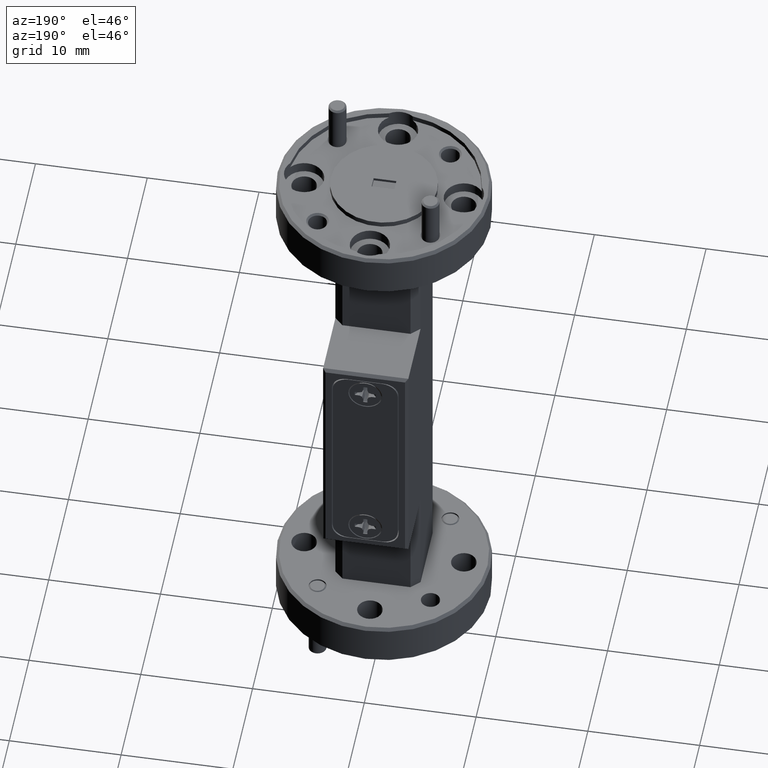
[diagram: clean part render]
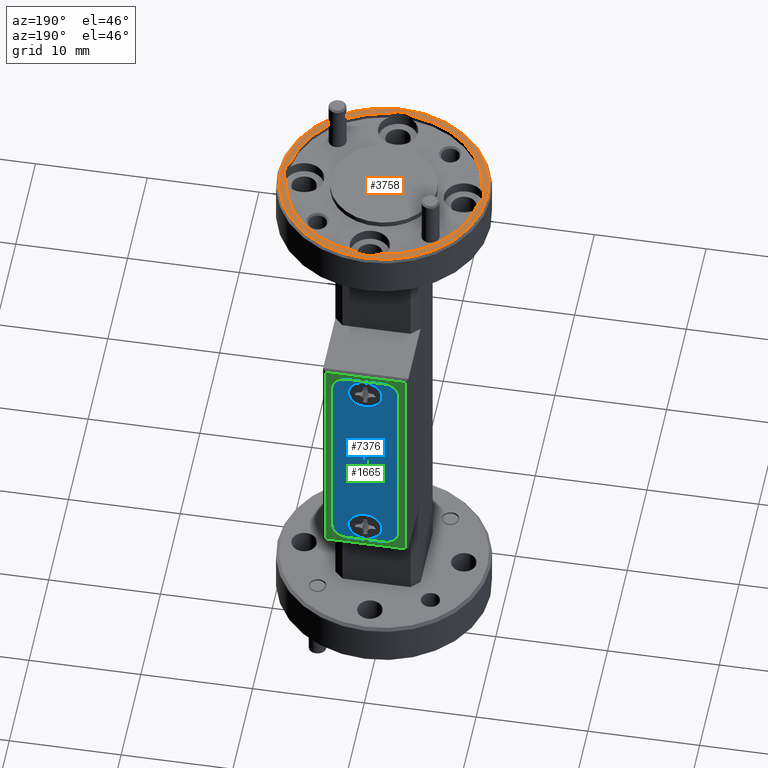
[diagram: same view with three faces highlighted in distinct colors, each labeled with its STEP entity id]
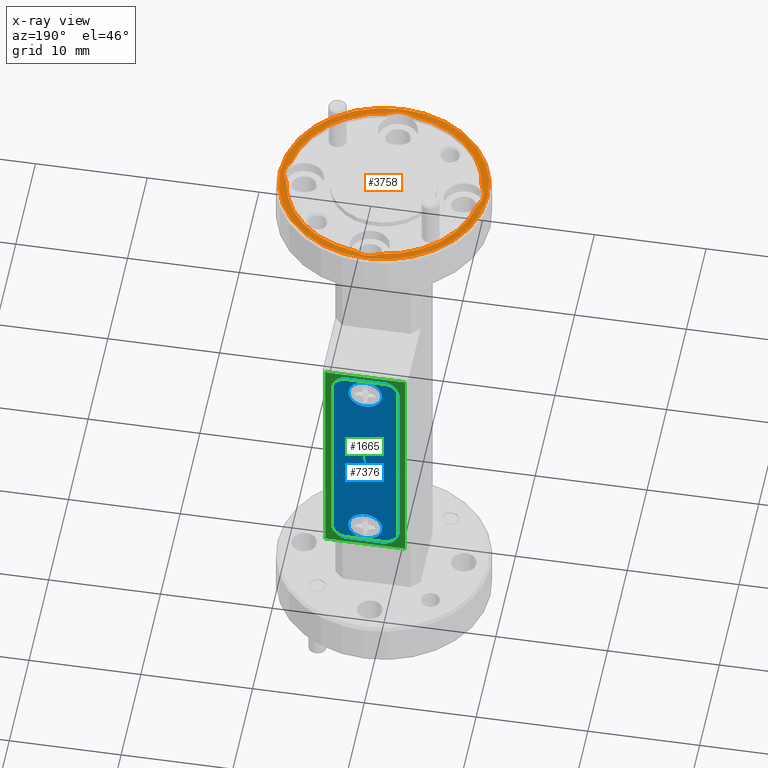
[diagram: x-ray of the same camera — body ghosted, the three highlighted faces saturated]
A machine part, auxiliary view with three faces highlighted in distinct colors.
The next image is the same camera in x-ray (body ghosted, the three faces saturated) — at least one of them is partly hidden behind the body in this view.
Their STEP definitions:

[orange] entity #3758 — the highlighted planar face has unit normal (-0, 0, 1).
#104 = CIRCLE ( 'NONE', #2187, 0.3399999999999999689 ) ;
#310 = DIRECTION ( 'NONE',  ( 0.000000000000000000, 0.000000000000000000, 1.000000000000000000 ) ) ;
#326 = CARTESIAN_POINT ( 'NONE',  ( -0.04176564826505140687, -0.3374250000000001415, 1.000000000000000000 ) ) ;
#334 = DIRECTION ( 'NONE',  ( 1.000000000000000000, 0.000000000000000000, 0.000000000000000000 ) ) ;
#335 = CARTESIAN_POINT ( 'NONE',  ( 0.2812500000000000555, 0.000000000000000000, 1.000000000000000000 ) ) ;
#442 = CIRCLE ( 'NONE', #5620, 0.07000000000000000666 ) ;
#450 = VERTEX_POINT ( 'NONE', #6372 ) ;
#548 = DIRECTION ( 'NONE',  ( 0.000000000000000000, 0.000000000000000000, 1.000000000000000000 ) ) ;
#682 = FACE_OUTER_BOUND ( 'NONE', #6412, .T. ) ;
#698 = AXIS2_PLACEMENT_3D ( 'NONE', #7031, #3462, #5218 ) ;
#817 = EDGE_CURVE ( 'NONE', #4935, #2401, #4106, .T. ) ;
#866 = DIRECTION ( 'NONE',  ( 1.000000000000000000, 0.000000000000000000, 0.000000000000000000 ) ) ;
#904 = DIRECTION ( 'NONE',  ( -0.000000000000000000, 0.000000000000000000, 1.000000000000000000 ) ) ;
#1003 = CARTESIAN_POINT ( 'NONE',  ( 0.000000000000000000, 0.000000000000000000, 1.000000000000000000 ) ) ;
#1047 = CARTESIAN_POINT ( 'NONE',  ( 0.000000000000000000, 0.000000000000000000, 1.000000000000000000 ) ) ;
#1217 = CARTESIAN_POINT ( 'NONE',  ( -0.3374250000000000305, 0.04176564826505155953, 1.000000000000000000 ) ) ;
#1387 = DIRECTION ( 'NONE',  ( 0.000000000000000000, 0.000000000000000000, 1.000000000000000000 ) ) ;
#1416 = AXIS2_PLACEMENT_3D ( 'NONE', #6222, #2701, #2188 ) ;
#1423 = DIRECTION ( 'NONE',  ( -0.000000000000000000, 0.000000000000000000, 1.000000000000000000 ) ) ;
#1547 = CARTESIAN_POINT ( 'NONE',  ( 0.3374250000000000305, 0.04176564826505155953, 1.000000000000000000 ) ) ;
#1576 = CIRCLE ( 'NONE', #3053, 0.07000000000000000666 ) ;
#1600 = DIRECTION ( 'NONE',  ( 1.000000000000000000, 0.000000000000000000, 0.000000000000000000 ) ) ;
#1638 = EDGE_CURVE ( 'NONE', #5135, #6689, #5479, .T. ) ;
#1721 = DIRECTION ( 'NONE',  ( 1.000000000000000000, 0.000000000000000000, 0.000000000000000000 ) ) ;
#1835 = EDGE_CURVE ( 'NONE', #6254, #6214, #4246, .T. ) ;
#2081 = CARTESIAN_POINT ( 'NONE',  ( 0.000000000000000000, -0.2812500000000000555, 1.000000000000000000 ) ) ;
#2147 = ORIENTED_EDGE ( 'NONE', *, *, #4320, .F. ) ;
#2149 = CIRCLE ( 'NONE', #1416, 0.07000000000000000666 ) ;
#2177 = DIRECTION ( 'NONE',  ( -0.000000000000000000, 0.000000000000000000, 1.000000000000000000 ) ) ;
#2187 = AXIS2_PLACEMENT_3D ( 'NONE', #1047, #548, #1721 ) ;
#2188 = DIRECTION ( 'NONE',  ( 1.000000000000000000, 0.000000000000000000, 0.000000000000000000 ) ) ;
#2401 = VERTEX_POINT ( 'NONE', #6282 ) ;
#2404 = CIRCLE ( 'NONE', #698, 0.07000000000000000666 ) ;
#2413 = CARTESIAN_POINT ( 'NONE',  ( 0.000000000000000000, 0.2812500000000000555, 1.000000000000000000 ) ) ;
#2422 = EDGE_CURVE ( 'NONE', #6689, #2983, #442, .T. ) ;
#2590 = ORIENTED_EDGE ( 'NONE', *, *, #7230, .F. ) ;
#2619 = AXIS2_PLACEMENT_3D ( 'NONE', #3405, #5659, #3912 ) ;
#2701 = DIRECTION ( 'NONE',  ( -0.000000000000000000, -0.000000000000000000, 1.000000000000000000 ) ) ;
#2717 = CARTESIAN_POINT ( 'NONE',  ( -0.3374250000000000305, -0.04176564826505155953, 1.000000000000000000 ) ) ;
#2888 = CARTESIAN_POINT ( 'NONE',  ( 0.04176564826505155953, -0.3374250000000000305, 1.000000000000000000 ) ) ;
#2983 = VERTEX_POINT ( 'NONE', #2888 ) ;
#3040 = EDGE_CURVE ( 'NONE', #2401, #5135, #2404, .T. ) ;
#3053 = AXIS2_PLACEMENT_3D ( 'NONE', #335, #5552, #4962 ) ;
#3279 = DIRECTION ( 'NONE',  ( 1.000000000000000000, 0.000000000000000000, 0.000000000000000000 ) ) ;
#3341 = CARTESIAN_POINT ( 'NONE',  ( 0.000000000000000000, 0.000000000000000000, 1.000000000000000000 ) ) ;
#3374 = EDGE_CURVE ( 'NONE', #2983, #450, #3521, .T. ) ;
#3380 = ORIENTED_EDGE ( 'NONE', *, *, #5167, .T. ) ;
#3405 = CARTESIAN_POINT ( 'NONE',  ( -0.2812500000000000555, 0.000000000000000000, 1.000000000000000000 ) ) ;
#3462 = DIRECTION ( 'NONE',  ( -0.000000000000000000, -0.000000000000000000, 1.000000000000000000 ) ) ;
#3521 = CIRCLE ( 'NONE', #5003, 0.3399999999999999689 ) ;
#3599 = CARTESIAN_POINT ( 'NONE',  ( 0.000000000000000000, 0.000000000000000000, 1.000000000000000000 ) ) ;
#3613 = CARTESIAN_POINT ( 'NONE',  ( 0.3512500000000000622, 0.000000000000000000, 1.000000000000000000 ) ) ;
#3674 = ORIENTED_EDGE ( 'NONE', *, *, #1638, .F. ) ;
#3686 = CARTESIAN_POINT ( 'NONE',  ( -0.04176564826505140687, 0.3374250000000001415, 1.000000000000000000 ) ) ;
#3758 = ADVANCED_FACE ( 'NONE', ( #7130, #682 ), #4820, .T. ) ;
#3784 = ORIENTED_EDGE ( 'NONE', *, *, #817, .F. ) ;
#3787 = AXIS2_PLACEMENT_3D ( 'NONE', #3341, #2177, #5639 ) ;
#3801 = CARTESIAN_POINT ( 'NONE',  ( 0.000000000000000000, 0.000000000000000000, 1.000000000000000000 ) ) ;
#3865 = AXIS2_PLACEMENT_3D ( 'NONE', #7314, #904, #334 ) ;
#3912 = DIRECTION ( 'NONE',  ( 1.000000000000000000, 0.000000000000000000, 0.000000000000000000 ) ) ;
#4106 = CIRCLE ( 'NONE', #2619, 0.07000000000000000666 ) ;
#4246 = CIRCLE ( 'NONE', #4749, 0.07000000000000000666 ) ;
#4273 = CARTESIAN_POINT ( 'NONE',  ( 0.3650000000000000466, 4.531193156845207927E-17, 1.000000000000000000 ) ) ;
#4320 = EDGE_CURVE ( 'NONE', #450, #7414, #2149, .T. ) ;
#4414 = CIRCLE ( 'NONE', #3787, 0.3650000000000000466 ) ;
#4416 = DIRECTION ( 'NONE',  ( 1.000000000000000000, 0.000000000000000000, 0.000000000000000000 ) ) ;
#4530 = DIRECTION ( 'NONE',  ( 1.000000000000000000, 0.000000000000000000, 0.000000000000000000 ) ) ;
#4638 = ORIENTED_EDGE ( 'NONE', *, *, #3374, .F. ) ;
#4749 = AXIS2_PLACEMENT_3D ( 'NONE', #2413, #4790, #5404 ) ;
#4790 = DIRECTION ( 'NONE',  ( -0.000000000000000000, -0.000000000000000000, 1.000000000000000000 ) ) ;
#4820 = PLANE ( 'NONE',  #5258 ) ;
#4935 = VERTEX_POINT ( 'NONE', #1217 ) ;
#4962 = DIRECTION ( 'NONE',  ( 1.000000000000000000, 0.000000000000000000, 0.000000000000000000 ) ) ;
#5003 = AXIS2_PLACEMENT_3D ( 'NONE', #3801, #6868, #1600 ) ;
#5033 = CARTESIAN_POINT ( 'NONE',  ( 0.000000000000000000, 0.000000000000000000, 1.000000000000000000 ) ) ;
#5129 = EDGE_LOOP ( 'NONE', ( #7530, #2590, #6969, #2147, #4638, #5419, #3674, #7582, #3784, #5421 ) ) ;
#5135 = VERTEX_POINT ( 'NONE', #2717 ) ;
#5167 = EDGE_CURVE ( 'NONE', #6210, #7139, #5738, .T. ) ;
#5218 = DIRECTION ( 'NONE',  ( 1.000000000000000000, 0.000000000000000000, 0.000000000000000000 ) ) ;
#5258 = AXIS2_PLACEMENT_3D ( 'NONE', #3599, #1423, #4416 ) ;
#5404 = DIRECTION ( 'NONE',  ( 1.000000000000000000, 0.000000000000000000, 0.000000000000000000 ) ) ;
#5419 = ORIENTED_EDGE ( 'NONE', *, *, #2422, .F. ) ;
#5421 = ORIENTED_EDGE ( 'NONE', *, *, #5454, .F. ) ;
#5454 = EDGE_CURVE ( 'NONE', #6214, #4935, #7461, .T. ) ;
#5479 = CIRCLE ( 'NONE', #6225, 0.3399999999999999689 ) ;
#5501 = ORIENTED_EDGE ( 'NONE', *, *, #5950, .T. ) ;
#5552 = DIRECTION ( 'NONE',  ( -0.000000000000000000, -0.000000000000000000, 1.000000000000000000 ) ) ;
#5620 = AXIS2_PLACEMENT_3D ( 'NONE', #2081, #6161, #866 ) ;
#5639 = DIRECTION ( 'NONE',  ( 1.000000000000000000, 0.000000000000000000, 0.000000000000000000 ) ) ;
#5659 = DIRECTION ( 'NONE',  ( -0.000000000000000000, -0.000000000000000000, 1.000000000000000000 ) ) ;
#5738 = CIRCLE ( 'NONE', #3865, 0.3650000000000000466 ) ;
#5950 = EDGE_CURVE ( 'NONE', #7139, #6210, #4414, .T. ) ;
#6161 = DIRECTION ( 'NONE',  ( -0.000000000000000000, -0.000000000000000000, 1.000000000000000000 ) ) ;
#6210 = VERTEX_POINT ( 'NONE', #4273 ) ;
#6214 = VERTEX_POINT ( 'NONE', #3686 ) ;
#6222 = CARTESIAN_POINT ( 'NONE',  ( 0.2812500000000000555, 0.000000000000000000, 1.000000000000000000 ) ) ;
#6225 = AXIS2_PLACEMENT_3D ( 'NONE', #1003, #310, #4530 ) ;
#6226 = AXIS2_PLACEMENT_3D ( 'NONE', #5033, #1387, #3279 ) ;
#6254 = VERTEX_POINT ( 'NONE', #7438 ) ;
#6282 = CARTESIAN_POINT ( 'NONE',  ( -0.3512500000000000622, 8.572527594031471957E-18, 1.000000000000000000 ) ) ;
#6339 = EDGE_CURVE ( 'NONE', #7414, #6676, #1576, .T. ) ;
#6372 = CARTESIAN_POINT ( 'NONE',  ( 0.3374250000000000860, -0.04176564826505142769, 1.000000000000000000 ) ) ;
#6412 = EDGE_LOOP ( 'NONE', ( #5501, #3380 ) ) ;
#6676 = VERTEX_POINT ( 'NONE', #1547 ) ;
#6681 = CARTESIAN_POINT ( 'NONE',  ( -0.3650000000000000466, 0.000000000000000000, 1.000000000000000000 ) ) ;
#6689 = VERTEX_POINT ( 'NONE', #326 ) ;
#6868 = DIRECTION ( 'NONE',  ( 0.000000000000000000, 0.000000000000000000, 1.000000000000000000 ) ) ;
#6969 = ORIENTED_EDGE ( 'NONE', *, *, #6339, .F. ) ;
#7031 = CARTESIAN_POINT ( 'NONE',  ( -0.2812500000000000555, 0.000000000000000000, 1.000000000000000000 ) ) ;
#7130 = FACE_BOUND ( 'NONE', #5129, .T. ) ;
#7139 = VERTEX_POINT ( 'NONE', #6681 ) ;
#7230 = EDGE_CURVE ( 'NONE', #6676, #6254, #104, .T. ) ;
#7314 = CARTESIAN_POINT ( 'NONE',  ( 0.000000000000000000, 0.000000000000000000, 1.000000000000000000 ) ) ;
#7414 = VERTEX_POINT ( 'NONE', #3613 ) ;
#7438 = CARTESIAN_POINT ( 'NONE',  ( 0.04176564826505137912, 0.3374250000000001415, 1.000000000000000000 ) ) ;
#7461 = CIRCLE ( 'NONE', #6226, 0.3399999999999999689 ) ;
#7530 = ORIENTED_EDGE ( 'NONE', *, *, #1835, .F. ) ;
#7582 = ORIENTED_EDGE ( 'NONE', *, *, #3040, .F. ) ;

[blue] entity #7376 — the highlighted planar face has unit normal (-0, -1, -0).
#75 = DIRECTION ( 'NONE',  ( 8.683306935269169147E-17, 1.000000000000000000, 2.547280781376809149E-17 ) ) ;
#108 = LINE ( 'NONE', #2447, #5855 ) ;
#149 = EDGE_CURVE ( 'NONE', #6607, #6258, #1259, .T. ) ;
#194 = DIRECTION ( 'NONE',  ( 1.000000000000000000, 0.000000000000000000, 0.000000000000000000 ) ) ;
#252 = CARTESIAN_POINT ( 'NONE',  ( -0.1145000000000000046, 0.3750000000000002220, -0.3934999999999999609 ) ) ;
#384 = DIRECTION ( 'NONE',  ( 8.683306935269169147E-17, 1.000000000000000000, 2.547280781376809149E-17 ) ) ;
#492 = EDGE_CURVE ( 'NONE', #6258, #3182, #4050, .T. ) ;
#562 = CARTESIAN_POINT ( 'NONE',  ( 0.05949999999999998346, 0.3750000000000002220, 0.3934999999999998499 ) ) ;
#668 = CIRCLE ( 'NONE', #4983, 0.05949999999999999734 ) ;
#699 = FACE_OUTER_BOUND ( 'NONE', #4894, .T. ) ;
#767 = ORIENTED_EDGE ( 'NONE', *, *, #5919, .T. ) ;
#834 = LINE ( 'NONE', #252, #2380 ) ;
#905 = CARTESIAN_POINT ( 'NONE',  ( 0.05949999999999994876, 0.3750000000000002220, -0.3934999999999999609 ) ) ;
#936 = AXIS2_PLACEMENT_3D ( 'NONE', #6882, #3976, #1573 ) ;
#940 = ORIENTED_EDGE ( 'NONE', *, *, #5032, .T. ) ;
#1007 = FACE_BOUND ( 'NONE', #5075, .T. ) ;
#1043 = ORIENTED_EDGE ( 'NONE', *, *, #149, .T. ) ;
#1256 = CARTESIAN_POINT ( 'NONE',  ( -0.05950000000000000427, 0.3750000000000002220, -0.3290000000000000702 ) ) ;
#1259 = CIRCLE ( 'NONE', #7180, 0.05499999999999998640 ) ;
#1326 = CARTESIAN_POINT ( 'NONE',  ( -0.1145000000000000046, 0.3750000000000002220, 0.3384999999999999121 ) ) ;
#1384 = ORIENTED_EDGE ( 'NONE', *, *, #2400, .F. ) ;
#1489 = DIRECTION ( 'NONE',  ( 1.000000000000000000, 0.000000000000000000, 0.000000000000000000 ) ) ;
#1569 = EDGE_CURVE ( 'NONE', #2278, #4323, #7325, .T. ) ;
#1573 = DIRECTION ( 'NONE',  ( 1.000000000000000000, 0.000000000000000000, 0.000000000000000000 ) ) ;
#1588 = CARTESIAN_POINT ( 'NONE',  ( -0.05950000000000000427, 0.3750000000000002220, 0.3289999999999998481 ) ) ;
#1806 = EDGE_CURVE ( 'NONE', #7008, #6168, #668, .T. ) ;
#1947 = ORIENTED_EDGE ( 'NONE', *, *, #5200, .T. ) ;
#1995 = DIRECTION ( 'NONE',  ( -1.000000000000000000, 0.000000000000000000, 0.000000000000000000 ) ) ;
#2016 = CARTESIAN_POINT ( 'NONE',  ( 0.05949999999999999040, 0.3750000000000002220, 0.3289999999999998481 ) ) ;
#2137 = DIRECTION ( 'NONE',  ( -1.000000000000000000, 0.000000000000000000, 0.000000000000000000 ) ) ;
#2153 = ORIENTED_EDGE ( 'NONE', *, *, #6579, .T. ) ;
#2273 = AXIS2_PLACEMENT_3D ( 'NONE', #5040, #5508, #6774 ) ;
#2278 = VERTEX_POINT ( 'NONE', #1326 ) ;
#2306 = AXIS2_PLACEMENT_3D ( 'NONE', #6175, #384, #2137 ) ;
#2344 = DIRECTION ( 'NONE',  ( 1.000000000000000000, -8.683306935269170379E-17, 0.000000000000000000 ) ) ;
#2380 = VECTOR ( 'NONE', #2594, 39.37007874015748143 ) ;
#2400 = EDGE_CURVE ( 'NONE', #6168, #7008, #6719, .T. ) ;
#2447 = CARTESIAN_POINT ( 'NONE',  ( 0.1144999999999999629, 0.3750000000000002220, -0.3934999999999999609 ) ) ;
#2493 = FACE_BOUND ( 'NONE', #3807, .T. ) ;
#2559 = AXIS2_PLACEMENT_3D ( 'NONE', #3091, #6543, #5503 ) ;
#2594 = DIRECTION ( 'NONE',  ( 0.000000000000000000, -2.547280781376810074E-17, 1.000000000000000000 ) ) ;
#2648 = VERTEX_POINT ( 'NONE', #3081 ) ;
#2771 = CARTESIAN_POINT ( 'NONE',  ( -0.1145000000000000046, 0.3750000000000002220, 0.3934999999999998499 ) ) ;
#2808 = LINE ( 'NONE', #2771, #3664 ) ;
#2883 = EDGE_CURVE ( 'NONE', #6885, #3052, #5139, .T. ) ;
#2994 = DIRECTION ( 'NONE',  ( -1.000000000000000000, 0.000000000000000000, 0.000000000000000000 ) ) ;
#3044 = DIRECTION ( 'NONE',  ( -8.683306935269170379E-17, -1.000000000000000000, -2.547280781376809458E-17 ) ) ;
#3052 = VERTEX_POINT ( 'NONE', #4088 ) ;
#3056 = CARTESIAN_POINT ( 'NONE',  ( 0.1144999999999999629, 0.3750000000000002220, -0.3385000000000000231 ) ) ;
#3081 = CARTESIAN_POINT ( 'NONE',  ( -0.1145000000000000046, 0.3750000000000002220, -0.3385000000000000231 ) ) ;
#3091 = CARTESIAN_POINT ( 'NONE',  ( -0.05950000000000001815, 0.3750000000000002220, -0.3385000000000000231 ) ) ;
#3182 = VERTEX_POINT ( 'NONE', #5477 ) ;
#3226 = DIRECTION ( 'NONE',  ( 8.683306935269169147E-17, 1.000000000000000000, 2.547280781376809149E-17 ) ) ;
#3230 = VECTOR ( 'NONE', #5290, 39.37007874015748143 ) ;
#3399 = ORIENTED_EDGE ( 'NONE', *, *, #5931, .F. ) ;
#3642 = DIRECTION ( 'NONE',  ( 0.000000000000000000, 2.547280781376810074E-17, -1.000000000000000000 ) ) ;
#3664 = VECTOR ( 'NONE', #5136, 39.37007874015748143 ) ;
#3696 = CARTESIAN_POINT ( 'NONE',  ( 0.05949999999999994876, 0.3750000000000002220, -0.3385000000000000231 ) ) ;
#3730 = DIRECTION ( 'NONE',  ( 8.683306935269169147E-17, 1.000000000000000000, 2.547280781376809149E-17 ) ) ;
#3807 = EDGE_LOOP ( 'NONE', ( #1384, #5677 ) ) ;
#3859 = DIRECTION ( 'NONE',  ( 8.683306935269169147E-17, 1.000000000000000000, 2.547280781376809149E-17 ) ) ;
#3885 = ORIENTED_EDGE ( 'NONE', *, *, #5573, .F. ) ;
#3941 = CARTESIAN_POINT ( 'NONE',  ( -0.05950000000000002509, 0.3750000000000002220, 0.3934999999999998499 ) ) ;
#3976 = DIRECTION ( 'NONE',  ( 8.683306935269169147E-17, 1.000000000000000000, 2.547280781376809149E-17 ) ) ;
#4050 = LINE ( 'NONE', #7028, #3230 ) ;
#4088 = CARTESIAN_POINT ( 'NONE',  ( 0.1144999999999999629, 0.3750000000000001665, 0.3384999999999997455 ) ) ;
#4183 = CIRCLE ( 'NONE', #2559, 0.05499999999999999334 ) ;
#4199 = CARTESIAN_POINT ( 'NONE',  ( 2.604992080580751006E-18, 0.3750000000000002220, -0.3290000000000000702 ) ) ;
#4323 = VERTEX_POINT ( 'NONE', #3941 ) ;
#4633 = CIRCLE ( 'NONE', #6974, 0.05949999999999999734 ) ;
#4840 = CARTESIAN_POINT ( 'NONE',  ( 0.05949999999999999040, 0.3750000000000002220, -0.3290000000000000702 ) ) ;
#4894 = EDGE_LOOP ( 'NONE', ( #767, #7512, #940, #1043, #5542, #2153, #1947, #6703 ) ) ;
#4983 = AXIS2_PLACEMENT_3D ( 'NONE', #4199, #75, #2994 ) ;
#5018 = CARTESIAN_POINT ( 'NONE',  ( -0.05950000000000002509, 0.3750000000000002220, 0.3384999999999999121 ) ) ;
#5032 = EDGE_CURVE ( 'NONE', #3052, #6607, #108, .T. ) ;
#5040 = CARTESIAN_POINT ( 'NONE',  ( 2.604992080580751006E-18, 0.3750000000000002220, -0.3290000000000000702 ) ) ;
#5075 = EDGE_LOOP ( 'NONE', ( #3885, #3399 ) ) ;
#5136 = DIRECTION ( 'NONE',  ( 1.000000000000000000, -8.683306935269171612E-17, 0.000000000000000000 ) ) ;
#5139 = CIRCLE ( 'NONE', #936, 0.05499999999999998640 ) ;
#5200 = EDGE_CURVE ( 'NONE', #2648, #2278, #834, .T. ) ;
#5290 = DIRECTION ( 'NONE',  ( -1.000000000000000000, 8.683306935269171612E-17, 0.000000000000000000 ) ) ;
#5331 = CARTESIAN_POINT ( 'NONE',  ( 2.604992080580751006E-18, 0.3750000000000002220, -1.358282154488001328E-16 ) ) ;
#5477 = CARTESIAN_POINT ( 'NONE',  ( -0.05950000000000001815, 0.3750000000000002220, -0.3934999999999999609 ) ) ;
#5503 = DIRECTION ( 'NONE',  ( 1.000000000000000000, 0.000000000000000000, 0.000000000000000000 ) ) ;
#5508 = DIRECTION ( 'NONE',  ( 8.683306935269169147E-17, 1.000000000000000000, 2.547280781376809149E-17 ) ) ;
#5534 = AXIS2_PLACEMENT_3D ( 'NONE', #5331, #3044, #2344 ) ;
#5542 = ORIENTED_EDGE ( 'NONE', *, *, #492, .T. ) ;
#5573 = EDGE_CURVE ( 'NONE', #6844, #5811, #4633, .T. ) ;
#5677 = ORIENTED_EDGE ( 'NONE', *, *, #1806, .F. ) ;
#5811 = VERTEX_POINT ( 'NONE', #2016 ) ;
#5855 = VECTOR ( 'NONE', #3642, 39.37007874015748143 ) ;
#5883 = PLANE ( 'NONE',  #5534 ) ;
#5919 = EDGE_CURVE ( 'NONE', #4323, #6885, #2808, .T. ) ;
#5931 = EDGE_CURVE ( 'NONE', #5811, #6844, #6887, .T. ) ;
#6168 = VERTEX_POINT ( 'NONE', #1256 ) ;
#6175 = CARTESIAN_POINT ( 'NONE',  ( 2.604992080580751006E-18, 0.3750000000000002220, 0.3289999999999998481 ) ) ;
#6258 = VERTEX_POINT ( 'NONE', #905 ) ;
#6543 = DIRECTION ( 'NONE',  ( 8.683306935269169147E-17, 1.000000000000000000, 2.547280781376809149E-17 ) ) ;
#6579 = EDGE_CURVE ( 'NONE', #3182, #2648, #4183, .T. ) ;
#6607 = VERTEX_POINT ( 'NONE', #3056 ) ;
#6703 = ORIENTED_EDGE ( 'NONE', *, *, #1569, .T. ) ;
#6706 = AXIS2_PLACEMENT_3D ( 'NONE', #5018, #3226, #1489 ) ;
#6719 = CIRCLE ( 'NONE', #2273, 0.05949999999999999734 ) ;
#6774 = DIRECTION ( 'NONE',  ( -1.000000000000000000, 0.000000000000000000, 0.000000000000000000 ) ) ;
#6844 = VERTEX_POINT ( 'NONE', #1588 ) ;
#6882 = CARTESIAN_POINT ( 'NONE',  ( 0.05949999999999998346, 0.3750000000000002220, 0.3384999999999997455 ) ) ;
#6885 = VERTEX_POINT ( 'NONE', #562 ) ;
#6887 = CIRCLE ( 'NONE', #2306, 0.05949999999999999734 ) ;
#6974 = AXIS2_PLACEMENT_3D ( 'NONE', #7302, #3859, #1995 ) ;
#7008 = VERTEX_POINT ( 'NONE', #4840 ) ;
#7028 = CARTESIAN_POINT ( 'NONE',  ( -0.1145000000000000046, 0.3750000000000002220, -0.3934999999999999609 ) ) ;
#7180 = AXIS2_PLACEMENT_3D ( 'NONE', #3696, #3730, #194 ) ;
#7302 = CARTESIAN_POINT ( 'NONE',  ( 2.604992080580751006E-18, 0.3750000000000002220, 0.3289999999999998481 ) ) ;
#7325 = CIRCLE ( 'NONE', #6706, 0.05499999999999999334 ) ;
#7376 = ADVANCED_FACE ( 'NONE', ( #1007, #699, #2493 ), #5883, .F. ) ;
#7512 = ORIENTED_EDGE ( 'NONE', *, *, #2883, .T. ) ;

[green] entity #1665 — the highlighted planar face has unit normal (0, -1, 0).
#163 = DIRECTION ( 'NONE',  ( 0.000000000000000000, 0.000000000000000000, -1.000000000000000000 ) ) ;
#263 = CARTESIAN_POINT ( 'NONE',  ( -0.06750000000000008771, 0.3750000000000000555, -0.3950000000000000733 ) ) ;
#283 = LINE ( 'NONE', #6521, #4229 ) ;
#374 = LINE ( 'NONE', #410, #1037 ) ;
#410 = CARTESIAN_POINT ( 'NONE',  ( -0.1499999999999998834, 0.3750000000000000555, -0.4149999999999998135 ) ) ;
#595 = EDGE_CURVE ( 'NONE', #6013, #2043, #283, .T. ) ;
#638 = CARTESIAN_POINT ( 'NONE',  ( 0.06749999999999997669, 0.3750000000000000555, 0.3449999999999998068 ) ) ;
#776 = EDGE_CURVE ( 'NONE', #5361, #3693, #3994, .T. ) ;
#826 = DIRECTION ( 'NONE',  ( 0.000000000000000000, 0.000000000000000000, -1.000000000000000000 ) ) ;
#864 = DIRECTION ( 'NONE',  ( -1.484699996556665039E-16, -0.000000000000000000, -1.000000000000000000 ) ) ;
#924 = EDGE_CURVE ( 'NONE', #3693, #7563, #4362, .T. ) ;
#1010 = CARTESIAN_POINT ( 'NONE',  ( -0.06750000000000008771, 0.3750000000000000555, -0.3950000000000000733 ) ) ;
#1037 = VECTOR ( 'NONE', #2122, 39.37007874015748143 ) ;
#1222 = AXIS2_PLACEMENT_3D ( 'NONE', #1275, #3553, #163 ) ;
#1275 = CARTESIAN_POINT ( 'NONE',  ( 0.06749999999999987954, 0.3750000000000000555, -0.3450000000000000844 ) ) ;
#1354 = CARTESIAN_POINT ( 'NONE',  ( -0.1175000000000001460, 0.3750000000000000555, -0.3449999999999999178 ) ) ;
#1357 = EDGE_LOOP ( 'NONE', ( #5791, #6582, #6198, #2773 ) ) ;
#1508 = CARTESIAN_POINT ( 'NONE',  ( -0.1175000000000001182, 0.3750000000000000555, -0.3450000000000000844 ) ) ;
#1586 = CIRCLE ( 'NONE', #1222, 0.05000000000000000971 ) ;
#1610 = VERTEX_POINT ( 'NONE', #4975 ) ;
#1611 = DIRECTION ( 'NONE',  ( 1.000000000000000000, 0.000000000000000000, 5.058977766044932872E-16 ) ) ;
#1665 = ADVANCED_FACE ( 'NONE', ( #3937, #5721 ), #7493, .F. ) ;
#1722 = VECTOR ( 'NONE', #3694, 39.37007874015748143 ) ;
#1732 = DIRECTION ( 'NONE',  ( 0.000000000000000000, 1.000000000000000000, 0.000000000000000000 ) ) ;
#1749 = VERTEX_POINT ( 'NONE', #2258 ) ;
#1772 = CARTESIAN_POINT ( 'NONE',  ( -0.06750000000000000444, 0.3750000000000000555, 0.3449999999999998068 ) ) ;
#1800 = DIRECTION ( 'NONE',  ( 0.000000000000000000, 1.000000000000000000, 0.000000000000000000 ) ) ;
#1991 = VECTOR ( 'NONE', #6354, 39.37007874015748143 ) ;
#2043 = VERTEX_POINT ( 'NONE', #4965 ) ;
#2122 = DIRECTION ( 'NONE',  ( -1.000000000000000000, 0.000000000000000000, 0.000000000000000000 ) ) ;
#2183 = CARTESIAN_POINT ( 'NONE',  ( 0.1499999999999998834, 0.3750000000000000555, 0.4249999999999999889 ) ) ;
#2258 = CARTESIAN_POINT ( 'NONE',  ( -0.1399999999999999301, 0.3750000000000000555, 0.4149999999999998135 ) ) ;
#2675 = CARTESIAN_POINT ( 'NONE',  ( -0.1175000000000000072, 0.3750000000000000555, 0.3449999999999998068 ) ) ;
#2748 = LINE ( 'NONE', #6237, #6768 ) ;
#2773 = ORIENTED_EDGE ( 'NONE', *, *, #7606, .T. ) ;
#2779 = DIRECTION ( 'NONE',  ( 0.000000000000000000, 0.000000000000000000, 1.000000000000000000 ) ) ;
#2786 = ORIENTED_EDGE ( 'NONE', *, *, #4978, .F. ) ;
#2790 = ORIENTED_EDGE ( 'NONE', *, *, #776, .F. ) ;
#2814 = DIRECTION ( 'NONE',  ( 0.000000000000000000, -0.000000000000000000, -1.000000000000000000 ) ) ;
#2855 = LINE ( 'NONE', #6884, #5037 ) ;
#2867 = CARTESIAN_POINT ( 'NONE',  ( 0.1399999999999997080, 0.3750000000000000555, -0.4149999999999998135 ) ) ;
#2880 = EDGE_CURVE ( 'NONE', #7563, #4275, #6920, .T. ) ;
#3275 = ORIENTED_EDGE ( 'NONE', *, *, #4528, .F. ) ;
#3553 = DIRECTION ( 'NONE',  ( 0.000000000000000000, 1.000000000000000000, -0.000000000000000000 ) ) ;
#3575 = DIRECTION ( 'NONE',  ( 0.000000000000000000, 0.000000000000000000, 1.000000000000000000 ) ) ;
#3586 = DIRECTION ( 'NONE',  ( 0.000000000000000000, 0.000000000000000000, 1.000000000000000000 ) ) ;
#3693 = VERTEX_POINT ( 'NONE', #2675 ) ;
#3694 = DIRECTION ( 'NONE',  ( -1.000000000000000000, -0.000000000000000000, -0.000000000000000000 ) ) ;
#3767 = ORIENTED_EDGE ( 'NONE', *, *, #6975, .F. ) ;
#3927 = VERTEX_POINT ( 'NONE', #1010 ) ;
#3937 = FACE_OUTER_BOUND ( 'NONE', #1357, .T. ) ;
#3994 = LINE ( 'NONE', #1508, #1991 ) ;
#4229 = VECTOR ( 'NONE', #864, 39.37007874015748143 ) ;
#4275 = VERTEX_POINT ( 'NONE', #5066 ) ;
#4325 = CARTESIAN_POINT ( 'NONE',  ( -0.06750000000000000444, 0.3750000000000000555, 0.3949999999999997957 ) ) ;
#4360 = LINE ( 'NONE', #263, #1722 ) ;
#4362 = CIRCLE ( 'NONE', #6695, 0.05000000000000000971 ) ;
#4528 = EDGE_CURVE ( 'NONE', #3927, #5361, #5332, .T. ) ;
#4575 = DIRECTION ( 'NONE',  ( 0.000000000000000000, -1.000000000000000000, 0.000000000000000000 ) ) ;
#4614 = CARTESIAN_POINT ( 'NONE',  ( 0.06749999999999987954, 0.3750000000000000555, -0.3950000000000000733 ) ) ;
#4624 = CIRCLE ( 'NONE', #7574, 0.05000000000000007910 ) ;
#4758 = CARTESIAN_POINT ( 'NONE',  ( -0.06750000000000008771, 0.3750000000000000555, -0.3450000000000000844 ) ) ;
#4889 = DIRECTION ( 'NONE',  ( 0.000000000000000000, 0.000000000000000000, 1.000000000000000000 ) ) ;
#4965 = CARTESIAN_POINT ( 'NONE',  ( 0.1174999999999998684, 0.3750000000000000555, -0.3450000000000000844 ) ) ;
#4975 = CARTESIAN_POINT ( 'NONE',  ( -0.1399999999999999301, 0.3750000000000000555, -0.4149999999999998135 ) ) ;
#4978 = EDGE_CURVE ( 'NONE', #4275, #6013, #4624, .T. ) ;
#5037 = VECTOR ( 'NONE', #2779, 39.37007874015748143 ) ;
#5066 = CARTESIAN_POINT ( 'NONE',  ( 0.06749999999999997669, 0.3750000000000000555, 0.3949999999999999067 ) ) ;
#5124 = EDGE_CURVE ( 'NONE', #5230, #1610, #374, .T. ) ;
#5168 = LINE ( 'NONE', #5818, #7249 ) ;
#5230 = VERTEX_POINT ( 'NONE', #2867 ) ;
#5332 = CIRCLE ( 'NONE', #7173, 0.05000000000000000971 ) ;
#5361 = VERTEX_POINT ( 'NONE', #1354 ) ;
#5470 = DIRECTION ( 'NONE',  ( 0.000000000000000000, 1.000000000000000000, 0.000000000000000000 ) ) ;
#5684 = CARTESIAN_POINT ( 'NONE',  ( -0.06750000000000000444, 0.3750000000000000555, 0.3949999999999997957 ) ) ;
#5721 = FACE_BOUND ( 'NONE', #6135, .T. ) ;
#5728 = EDGE_CURVE ( 'NONE', #7351, #3927, #4360, .T. ) ;
#5791 = ORIENTED_EDGE ( 'NONE', *, *, #6743, .T. ) ;
#5818 = CARTESIAN_POINT ( 'NONE',  ( 0.1499999999999998834, 0.3750000000000000555, 0.4149999999999998135 ) ) ;
#6013 = VERTEX_POINT ( 'NONE', #7097 ) ;
#6135 = EDGE_LOOP ( 'NONE', ( #2790, #3275, #6749, #3767, #6508, #2786, #6827, #6256 ) ) ;
#6198 = ORIENTED_EDGE ( 'NONE', *, *, #7285, .T. ) ;
#6237 = CARTESIAN_POINT ( 'NONE',  ( 0.1399999999999997080, 0.3750000000000000555, 0.4249999999999999889 ) ) ;
#6256 = ORIENTED_EDGE ( 'NONE', *, *, #924, .F. ) ;
#6354 = DIRECTION ( 'NONE',  ( 1.484699996556665039E-16, 0.000000000000000000, 1.000000000000000000 ) ) ;
#6460 = CARTESIAN_POINT ( 'NONE',  ( 0.1399999999999997080, 0.3750000000000000555, 0.4149999999999998135 ) ) ;
#6508 = ORIENTED_EDGE ( 'NONE', *, *, #595, .F. ) ;
#6521 = CARTESIAN_POINT ( 'NONE',  ( 0.1174999999999998684, 0.3750000000000000555, -0.3450000000000000844 ) ) ;
#6582 = ORIENTED_EDGE ( 'NONE', *, *, #5124, .T. ) ;
#6695 = AXIS2_PLACEMENT_3D ( 'NONE', #1772, #1732, #3586 ) ;
#6726 = VECTOR ( 'NONE', #1611, 39.37007874015748143 ) ;
#6743 = EDGE_CURVE ( 'NONE', #6823, #5230, #2748, .T. ) ;
#6749 = ORIENTED_EDGE ( 'NONE', *, *, #5728, .F. ) ;
#6768 = VECTOR ( 'NONE', #826, 39.37007874015748143 ) ;
#6823 = VERTEX_POINT ( 'NONE', #6460 ) ;
#6827 = ORIENTED_EDGE ( 'NONE', *, *, #2880, .F. ) ;
#6843 = AXIS2_PLACEMENT_3D ( 'NONE', #2183, #4575, #2814 ) ;
#6884 = CARTESIAN_POINT ( 'NONE',  ( -0.1399999999999999301, 0.3750000000000000555, 0.4249999999999999889 ) ) ;
#6920 = LINE ( 'NONE', #5684, #6726 ) ;
#6975 = EDGE_CURVE ( 'NONE', #2043, #7351, #1586, .T. ) ;
#7097 = CARTESIAN_POINT ( 'NONE',  ( 0.1174999999999999795, 0.3750000000000000555, 0.3449999999999998068 ) ) ;
#7173 = AXIS2_PLACEMENT_3D ( 'NONE', #4758, #1800, #3575 ) ;
#7249 = VECTOR ( 'NONE', #7520, 39.37007874015748143 ) ;
#7285 = EDGE_CURVE ( 'NONE', #1610, #1749, #2855, .T. ) ;
#7351 = VERTEX_POINT ( 'NONE', #4614 ) ;
#7493 = PLANE ( 'NONE',  #6843 ) ;
#7520 = DIRECTION ( 'NONE',  ( 1.000000000000000000, 0.000000000000000000, 0.000000000000000000 ) ) ;
#7563 = VERTEX_POINT ( 'NONE', #4325 ) ;
#7574 = AXIS2_PLACEMENT_3D ( 'NONE', #638, #5470, #4889 ) ;
#7606 = EDGE_CURVE ( 'NONE', #1749, #6823, #5168, .T. ) ;